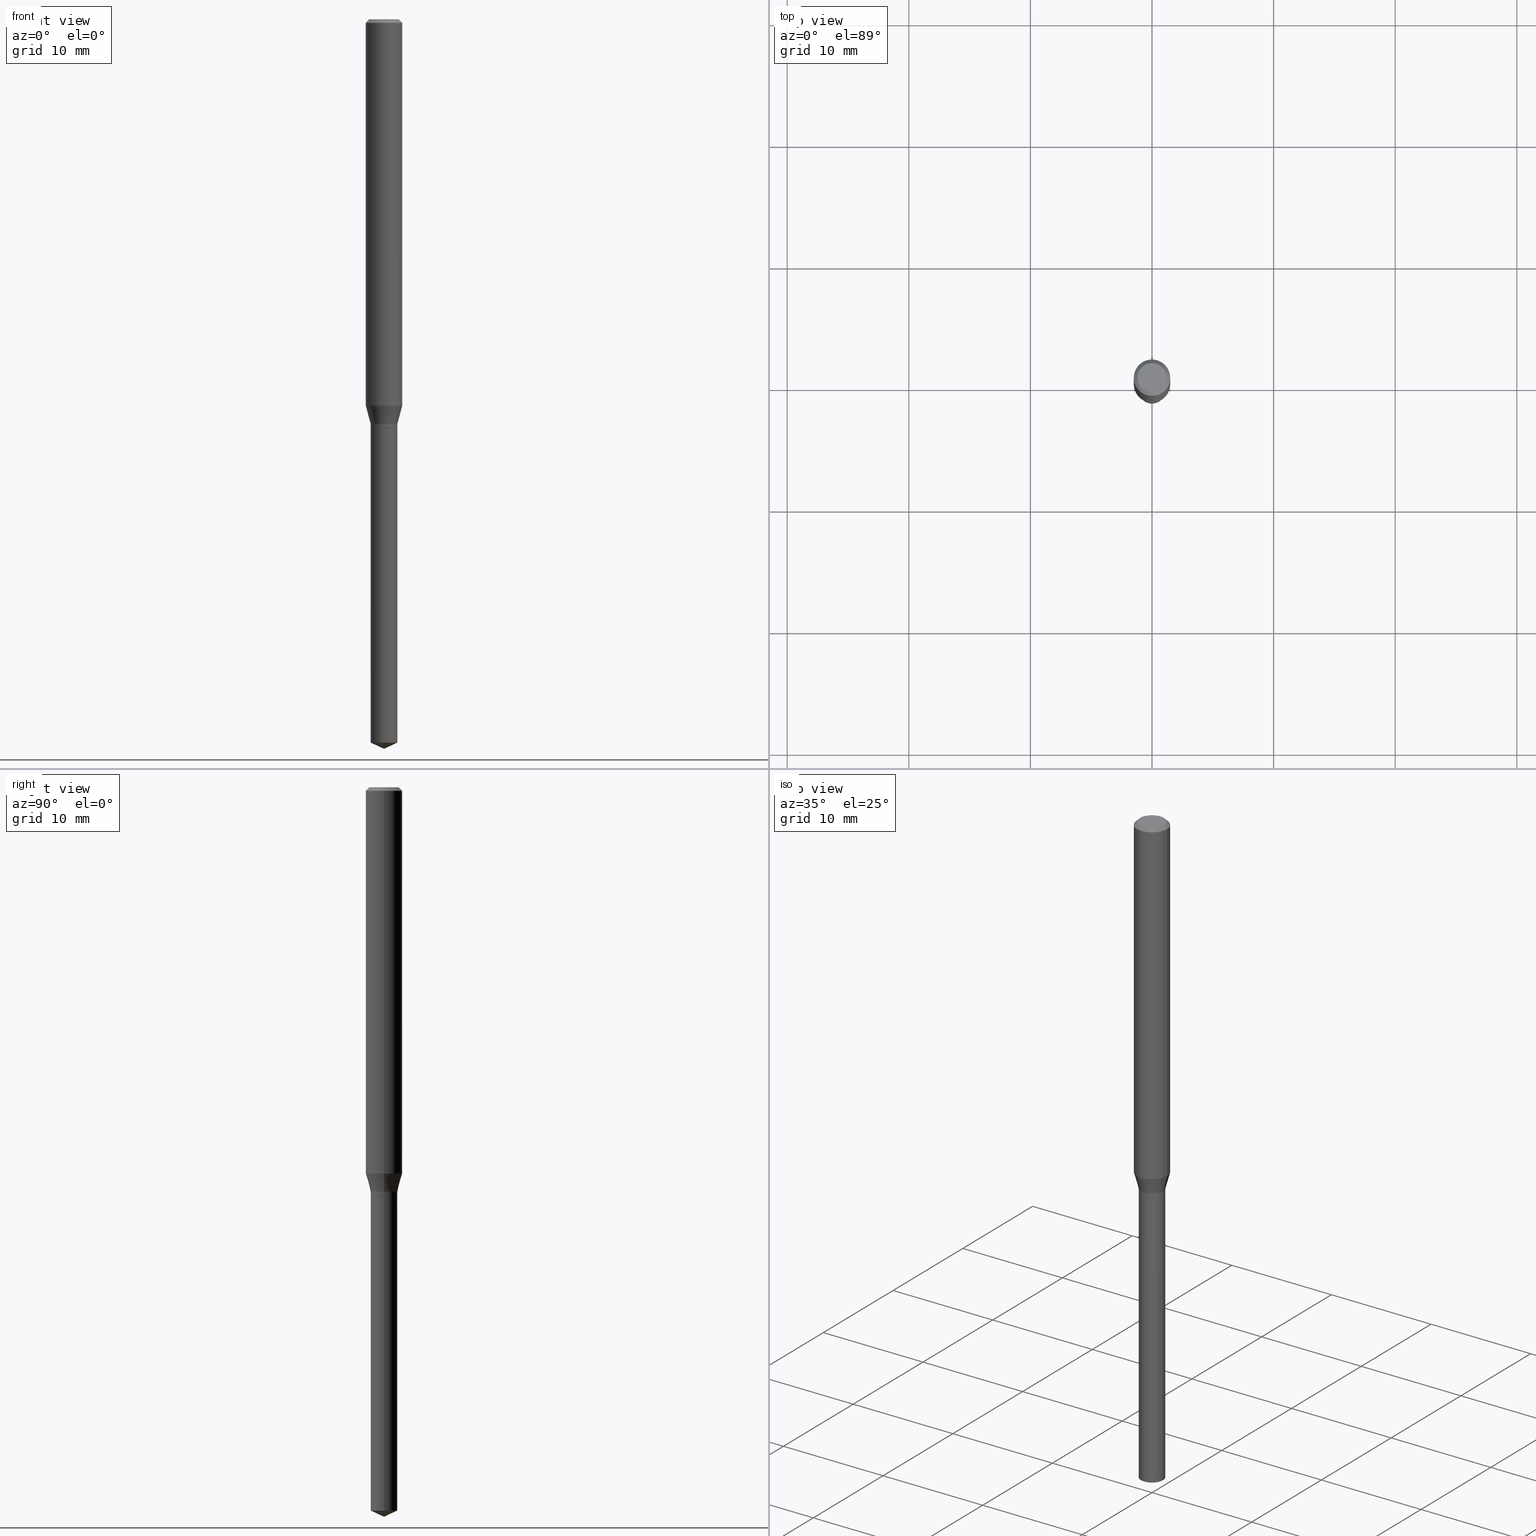
[diagram: canonical four-view strip — front | top / right | iso, engineering-drawing reading convention]
A machine part, canonical four-view strip (front | top / right | iso — engineering-drawing reading convention). The complete STEP part file that produces these views, byte-faithful:
ISO-10303-21;
HEADER;
FILE_DESCRIPTION (( 'STEP AP203' ),
    '1' );
FILE_NAME ('07625.STEP',
    '2024-04-23T23:58:14',
    ( '' ),
    ( '' ),
    'SwSTEP 2.0',
    'SolidWorks 2023',
    '' );
FILE_SCHEMA (( 'CONFIG_CONTROL_DESIGN' ));
ENDSEC;

DATA;
#1 = EDGE_LOOP ( 'NONE', ( #71, #170, #32, #112 ) ) ;
#2 = DIRECTION ( 'NONE',  ( -2.445468806185136597E-29, 3.491481338843145583E-15, 1.000000000000000000 ) ) ;
#3 = ORIENTED_EDGE ( 'NONE', *, *, #154, .T. ) ;
#4 = CARTESIAN_POINT ( 'NONE',  ( 0.05905000000000015098, -4.780257628167824527E-15, -1.251020199780789266 ) ) ;
#5 = VERTEX_POINT ( 'NONE', #366 ) ;
#6 = DIRECTION ( 'NONE',  ( 1.000000000000000000, -6.982962677686266711E-15, 4.876176775795936353E-29 ) ) ;
#7 = DIRECTION ( 'NONE',  ( 1.000000000000000000, -6.982962677686262766E-15, 0.000000000000000000 ) ) ;
#8 = PERSON_AND_ORGANIZATION ( #11, #157 ) ;
#9 = DESIGN_CONTEXT ( 'detailed design', #333, 'design' ) ;
#10 = DATE_AND_TIME ( #161, #246 ) ;
#11 = PERSON ( 'UNSPECIFIED', 'UNSPECIFIED', 'UNSPECIFIED', ('UNSPECIFIED'), ('UNSPECIFIED'), ('UNSPECIFIED') ) ;
#12 = VECTOR ( 'NONE', #61, 39.37007874015748854 ) ;
#13 = AXIS2_PLACEMENT_3D ( 'NONE', #360, #469, #247 ) ;
#14 = EDGE_CURVE ( 'NONE', #57, #5, #363, .T. ) ;
#15 = DIRECTION ( 'NONE',  ( -2.445468806185136597E-29, 3.491481338843145583E-15, 1.000000000000000000 ) ) ;
#16 = EDGE_LOOP ( 'NONE', ( #34, #452, #153, #379 ) ) ;
#17 = PERSON_AND_ORGANIZATION_ROLE ( 'design_owner' ) ;
#18 = VERTEX_POINT ( 'NONE', #330 ) ;
#19 = AXIS2_PLACEMENT_3D ( 'NONE', #83, #239, #394 ) ;
#20 = AXIS2_PLACEMENT_3D ( 'NONE', #461, #122, #487 ) ;
#21 = EDGE_LOOP ( 'NONE', ( #348, #121, #206, #167 ) ) ;
#22 = PERSON_AND_ORGANIZATION ( #11, #157 ) ;
#23 = CARTESIAN_POINT ( 'NONE',  ( -0.05905000000000015098, -3.948338196584109325E-15, -1.251020199780789266 ) ) ;
#24 = DIRECTION ( 'NONE',  ( 1.000000000000000000, -6.982962677686267499E-15, 4.876176775795936353E-29 ) ) ;
#25 = EDGE_CURVE ( 'NONE', #5, #57, #356, .T. ) ;
#26 = AXIS2_PLACEMENT_3D ( 'NONE', #132, #332, #244 ) ;
#27 = CARTESIAN_POINT ( 'NONE',  ( 0.04280000000000000471, -4.917402317626683735E-15, -1.322799999999999532 ) ) ;
#28 = CONICAL_SURFACE ( 'NONE', #416, 0.05904999999999999832, 0.7853981633974450594 ) ;
#29 = CC_DESIGN_APPROVAL ( #361, ( #68 ) ) ;
#30 = ORIENTED_EDGE ( 'NONE', *, *, #488, .T. ) ;
#31 = LINE ( 'NONE', #177, #164 ) ;
#32 = ORIENTED_EDGE ( 'NONE', *, *, #402, .T. ) ;
#33 = CARTESIAN_POINT ( 'NONE',  ( 3.203075042341291328E-29, -4.573142257616751398E-15, -1.309799999999999853 ) ) ;
#34 = ORIENTED_EDGE ( 'NONE', *, *, #169, .F. ) ;
#35 = CYLINDRICAL_SURFACE ( 'NONE', #231, 0.05905000000000007465 ) ;
#36 = AXIS2_PLACEMENT_3D ( 'NONE', #441, #303, #108 ) ;
#37 = EDGE_LOOP ( 'NONE', ( #73, #301, #447 ) ) ;
#38 = LOCAL_TIME ( 19, 58, 14.00000000000000000, #124 ) ;
#39 = CYLINDRICAL_SURFACE ( 'NONE', #262, 0.04329999999999999127 ) ;
#40 = ORIENTED_EDGE ( 'NONE', *, *, #25, .F. ) ;
#41 = CARTESIAN_POINT ( 'NONE',  ( 0.04329999999999999127, -4.920893798965527531E-15, -1.322799999999999976 ) ) ;
#42 = ADVANCED_FACE ( 'NONE', ( #437 ), #399, .T. ) ;
#43 = CARTESIAN_POINT ( 'NONE',  ( -0.04280000000000000471, -4.314419224116387972E-15, -1.322799999999999532 ) ) ;
#44 = PLANE ( 'NONE',  #20 ) ;
#45 = ORIENTED_EDGE ( 'NONE', *, *, #488, .F. ) ;
#46 = AXIS2_PLACEMENT_3D ( 'NONE', #128, #47, #96 ) ;
#47 = DIRECTION ( 'NONE',  ( -2.445468806185136597E-29, 3.491481338843145583E-15, 1.000000000000000000 ) ) ;
#48 = PERSON_AND_ORGANIZATION ( #11, #157 ) ;
#49 = EDGE_CURVE ( 'NONE', #276, #421, #392, .T. ) ;
#50 = FACE_OUTER_BOUND ( 'NONE', #151, .T. ) ;
#51 = AXIS2_PLACEMENT_3D ( 'NONE', #251, #130, #407 ) ;
#52 = VECTOR ( 'NONE', #100, 39.37007874015748143 ) ;
#53 = APPROVAL_ROLE ( '' ) ;
#54 = ORIENTED_EDGE ( 'NONE', *, *, #249, .F. ) ;
#55 = CC_DESIGN_PERSON_AND_ORGANIZATION_ASSIGNMENT ( #168, #323, ( #68 ) ) ;
#56 = MANIFOLD_SOLID_BREP ( 'Body-Move/Copy2[2]', #334 ) ;
#57 = VERTEX_POINT ( 'NONE', #355 ) ;
#58 = EDGE_LOOP ( 'NONE', ( #423, #118, #97, #315 ) ) ;
#59 = DATE_AND_TIME ( #255, #78 ) ;
#60 = EDGE_CURVE ( 'NONE', #401, #455, #404, .T. ) ;
#61 = DIRECTION ( 'NONE',  ( 0.9063077870366528233, -4.853149677051422177E-15, 0.4226182617406928910 ) ) ;
#62 = DIRECTION ( 'NONE',  ( 1.000000000000000000, -6.982962677686276966E-15, 0.000000000000000000 ) ) ;
#63 = LINE ( 'NONE', #70, #12 ) ;
#64 = ADVANCED_FACE ( 'NONE', ( #278 ), #158, .T. ) ;
#65 = ORIENTED_EDGE ( 'NONE', *, *, #295, .T. ) ;
#66 = DIRECTION ( 'NONE',  ( -2.445468806185136597E-29, 3.491481338843145583E-15, 1.000000000000000000 ) ) ;
#67 = AXIS2_PLACEMENT_3D ( 'NONE', #234, #272, #422 ) ;
#68 = PRODUCT_DEFINITION ( 'UNKNOWN', '', #308, #9 ) ;
#69 = ORIENTED_EDGE ( 'NONE', *, *, #216, .F. ) ;
#70 = CARTESIAN_POINT ( 'NONE',  ( 5.776686413970529753E-29, -8.247577218615279626E-15, -2.362200000000000077 ) ) ;
#71 = ORIENTED_EDGE ( 'NONE', *, *, #350, .F. ) ;
#72 = CARTESIAN_POINT ( 'NONE',  ( 8.265746106709734507E-48, -1.180129479067563789E-33, -3.380025165646692144E-19 ) ) ;
#73 = ORIENTED_EDGE ( 'NONE', *, *, #142, .F. ) ;
#74 = DIRECTION ( 'NONE',  ( -2.445468806185136597E-29, 3.491481338843145583E-15, 1.000000000000000000 ) ) ;
#75 = ADVANCED_FACE ( 'NONE', ( #428 ), #241, .T. ) ;
#76 = CONICAL_SURFACE ( 'NONE', #377, 0.04280000000000000471, 0.7853981633981141908 ) ;
#77 = ORIENTED_EDGE ( 'NONE', *, *, #413, .T. ) ;
#78 = LOCAL_TIME ( 19, 58, 14.00000000000000000, #210 ) ;
#79 = DIRECTION ( 'NONE',  ( -2.445468806185136597E-29, 3.491481338843145583E-15, 1.000000000000000000 ) ) ;
#80 = CC_DESIGN_PERSON_AND_ORGANIZATION_ASSIGNMENT ( #133, #213, ( #308 ) ) ;
#81 = DIRECTION ( 'NONE',  ( 1.000000000000000000, -6.982962677686276966E-15, 0.000000000000000000 ) ) ;
#82 = LINE ( 'NONE', #111, #473 ) ;
#83 = CARTESIAN_POINT ( 'NONE',  ( 2.888098660104664642E-31, -4.123439461173780879E-17, -0.01181000000000007565 ) ) ;
#84 = EDGE_CURVE ( 'NONE', #103, #368, #369, .T. ) ;
#85 = DIRECTION ( 'NONE',  ( 1.000000000000000000, -6.982962677686266711E-15, 4.876185090822587894E-29 ) ) ;
#86 = CIRCLE ( 'NONE', #431, 0.04330000000000001903 ) ;
#87 = EDGE_CURVE ( 'NONE', #160, #401, #430, .T. ) ;
#88 = SECURITY_CLASSIFICATION ( '', '', #484 ) ;
#89 = CARTESIAN_POINT ( 'NONE',  ( 0.000000000000000000, 0.000000000000000000, 0.000000000000000000 ) ) ;
#90 = CARTESIAN_POINT ( 'NONE',  ( -0.05905000000000007465, 4.195754854663396902E-16, -2.904631170795525395E-30 ) ) ;
#91 = APPLICATION_PROTOCOL_DEFINITION ( 'international standard', 'config_control_design', 1994, #333 ) ;
#92 = DIRECTION ( 'NONE',  ( 1.000000000000000000, -6.982962677686266711E-15, 4.876176775795936353E-29 ) ) ;
#93 = CIRCLE ( 'NONE', #46, 0.04329999999999999127 ) ;
#94 = DIRECTION ( 'NONE',  ( 1.000000000000000000, -6.982962677686276966E-15, 0.000000000000000000 ) ) ;
#95 = CARTESIAN_POINT ( 'NONE',  ( -0.04329999999999999127, -4.310866510437588651E-15, -1.322799999999999976 ) ) ;
#96 = DIRECTION ( 'NONE',  ( 1.000000000000000000, -6.982962677686269866E-15, 0.000000000000000000 ) ) ;
#97 = ORIENTED_EDGE ( 'NONE', *, *, #260, .F. ) ;
#98 = CARTESIAN_POINT ( 'NONE',  ( 3.203075042341291328E-29, -4.573142257616751398E-15, -1.309799999999999853 ) ) ;
#99 = AXIS2_PLACEMENT_3D ( 'NONE', #459, #148, #277 ) ;
#100 = DIRECTION ( 'NONE',  ( -0.2588190451025199623, 5.211531920934541575E-15, 0.9659258262890685343 ) ) ;
#101 = DATE_AND_TIME ( #219, #438 ) ;
#102 = DIRECTION ( 'NONE',  ( -2.438088387897960049E-29, 3.491481338843145188E-15, 1.000000000000000000 ) ) ;
#103 = VERTEX_POINT ( 'NONE', #23 ) ;
#104 = PERSON_AND_ORGANIZATION ( #11, #157 ) ;
#105 = CYLINDRICAL_SURFACE ( 'NONE', #451, 0.04330000000000001903 ) ;
#106 = ADVANCED_FACE ( 'NONE', ( #297 ), #371, .F. ) ;
#107 = EDGE_LOOP ( 'NONE', ( #204, #233, #144, #189 ) ) ;
#108 = DIRECTION ( 'NONE',  ( 1.000000000000000000, -6.982962677686262766E-15, 0.000000000000000000 ) ) ;
#109 = AXIS2_PLACEMENT_3D ( 'NONE', #320, #2, #490 ) ;
#110 = VERTEX_POINT ( 'NONE', #299 ) ;
#111 = CARTESIAN_POINT ( 'NONE',  ( 0.05904999999999999832, -4.463468013801466955E-16, -0.01181000000000007565 ) ) ;
#112 = ORIENTED_EDGE ( 'NONE', *, *, #14, .T. ) ;
#113 = FACE_OUTER_BOUND ( 'NONE', #269, .T. ) ;
#114 = EDGE_LOOP ( 'NONE', ( #288, #419, #414, #267 ) ) ;
#115 = CC_DESIGN_DATE_AND_TIME_ASSIGNMENT ( #141, #374, ( #88 ) ) ;
#116 = DIRECTION ( 'NONE',  ( -2.445468806185136597E-29, 3.491481338843145583E-15, 1.000000000000000000 ) ) ;
#117 = VECTOR ( 'NONE', #391, 39.37007874015748143 ) ;
#118 = ORIENTED_EDGE ( 'NONE', *, *, #49, .T. ) ;
#119 = DIRECTION ( 'NONE',  ( 2.445468806185136597E-29, -3.491481338843145583E-15, -1.000000000000000000 ) ) ;
#120 = ADVANCED_FACE ( 'NONE', ( #380 ), #292, .T. ) ;
#121 = ORIENTED_EDGE ( 'NONE', *, *, #350, .T. ) ;
#122 = DIRECTION ( 'NONE',  ( 2.438088387897960049E-29, -3.491481338843145188E-15, -1.000000000000000000 ) ) ;
#123 = VERTEX_POINT ( 'NONE', #480 ) ;
#124 = COORDINATED_UNIVERSAL_TIME_OFFSET ( 5, 0, .BEHIND. ) ;
#125 = CIRCLE ( 'NONE', #131, 0.04724000000000000421 ) ;
#126 = COORDINATED_UNIVERSAL_TIME_OFFSET ( 5, 0, .BEHIND. ) ;
#127 = CARTESIAN_POINT ( 'NONE',  ( 3.233643402418606881E-29, -4.616785774352292931E-15, -1.322300000000000253 ) ) ;
#128 = CARTESIAN_POINT ( 'NONE',  ( 5.727309655940458271E-29, -8.177080294345160929E-15, -2.342008878401888872 ) ) ;
#129 = EDGE_CURVE ( 'NONE', #421, #310, #186, .T. ) ;
#130 = DIRECTION ( 'NONE',  ( -2.445468806185136597E-29, 3.491481338843145583E-15, 1.000000000000000000 ) ) ;
#131 = AXIS2_PLACEMENT_3D ( 'NONE', #237, #74, #354 ) ;
#132 = CARTESIAN_POINT ( 'NONE',  ( 2.888098660104664642E-31, -4.123439461173780879E-17, -0.01181000000000007565 ) ) ;
#133 = PERSON_AND_ORGANIZATION ( #11, #157 ) ;
#134 = DIRECTION ( 'NONE',  ( -2.445468806185136597E-29, 3.491481338843145583E-15, 1.000000000000000000 ) ) ;
#135 = EDGE_CURVE ( 'NONE', #225, #368, #139, .T. ) ;
#136 = DIRECTION ( 'NONE',  ( -2.445468806185136597E-29, 3.491481338843145583E-15, 1.000000000000000000 ) ) ;
#137 = EDGE_CURVE ( 'NONE', #160, #483, #443, .T. ) ;
#138 = CONICAL_SURFACE ( 'NONE', #171, 0.04330000000000001903, 0.2617993877991485197 ) ;
#139 = LINE ( 'NONE', #449, #325 ) ;
#140 = CC_DESIGN_APPROVAL ( #454, ( #88 ) ) ;
#141 = DATE_AND_TIME ( #205, #296 ) ;
#142 = EDGE_CURVE ( 'NONE', #383, #110, #63, .T. ) ;
#143 = CARTESIAN_POINT ( 'NONE',  ( 3.203075042341291328E-29, -4.573142257616751398E-15, -1.309799999999999853 ) ) ;
#144 = ORIENTED_EDGE ( 'NONE', *, *, #413, .F. ) ;
#145 = COORDINATED_UNIVERSAL_TIME_OFFSET ( 5, 0, .BEHIND. ) ;
#146 = DIRECTION ( 'NONE',  ( 1.000000000000000000, -6.982962677686265133E-15, 0.000000000000000000 ) ) ;
#147 = EDGE_LOOP ( 'NONE', ( #77, #222, #389, #202 ) ) ;
#148 = DIRECTION ( 'NONE',  ( -2.445468806185136597E-29, 3.491481338843145583E-15, 1.000000000000000000 ) ) ;
#149 = EDGE_LOOP ( 'NONE', ( #183, #460, #40, #346 ) ) ;
#150 = DIRECTION ( 'NONE',  ( -2.445468806185136877E-29, 3.491481338843145188E-15, 1.000000000000000000 ) ) ;
#151 = EDGE_LOOP ( 'NONE', ( #475, #3, #191, #489 ) ) ;
#152 = DIRECTION ( 'NONE',  ( -2.445468806185136597E-29, 3.491481338843145583E-15, 1.000000000000000000 ) ) ;
#153 = ORIENTED_EDGE ( 'NONE', *, *, #135, .T. ) ;
#154 = EDGE_CURVE ( 'NONE', #401, #160, #254, .T. ) ;
#155 = FACE_OUTER_BOUND ( 'NONE', #114, .T. ) ;
#156 = VECTOR ( 'NONE', #248, 39.37007874015748143 ) ;
#157 = ORGANIZATION ( 'UNSPECIFIED', 'UNSPECIFIED', '' ) ;
#158 = CYLINDRICAL_SURFACE ( 'NONE', #229, 0.05905000000000007465 ) ;
#159 = CARTESIAN_POINT ( 'NONE',  ( -0.04330000000000000515, -7.869415289761038301E-15, -2.342008878401888872 ) ) ;
#160 = VERTEX_POINT ( 'NONE', #27 ) ;
#161 = CALENDAR_DATE ( 2024, 23, 4 ) ;
#162 = APPROVAL_DATE_TIME ( #10, #361 ) ;
#163 = VECTOR ( 'NONE', #418, 39.37007874015748854 ) ;
#164 = VECTOR ( 'NONE', #182, 39.37007874015748143 ) ;
#165 = PRODUCT_RELATED_PRODUCT_CATEGORY ( 'detail', '', ( #238 ) ) ;
#166 = DIRECTION ( 'NONE',  ( -2.445468806185136597E-29, 3.491481338843145583E-15, 1.000000000000000000 ) ) ;
#167 = ORIENTED_EDGE ( 'NONE', *, *, #402, .F. ) ;
#168 = PERSON_AND_ORGANIZATION ( #11, #157 ) ;
#169 = EDGE_CURVE ( 'NONE', #18, #103, #343, .T. ) ;
#170 = ORIENTED_EDGE ( 'NONE', *, *, #321, .F. ) ;
#171 = AXIS2_PLACEMENT_3D ( 'NONE', #143, #136, #446 ) ;
#172 = DATE_TIME_ROLE ( 'creation_date' ) ;
#173 = ADVANCED_FACE ( 'NONE', ( #478 ), #138, .T. ) ;
#174 = DIRECTION ( 'NONE',  ( -0.9063077870366528233, 7.915267918739013053E-15, 0.4226182617406928910 ) ) ;
#175 = LINE ( 'NONE', #338, #326 ) ;
#176 = PERSON_AND_ORGANIZATION_ROLE ( 'design_supplier' ) ;
#177 = CARTESIAN_POINT ( 'NONE',  ( 0.04330000000000001903, -3.023622839438155115E-16, 2.111384543919641328E-30 ) ) ;
#178 = ADVANCED_FACE ( 'NONE', ( #224 ), #105, .T. ) ;
#179 = CIRCLE ( 'NONE', #36, 0.05905000000000015098 ) ;
#180 = DIRECTION ( 'NONE',  ( 1.000000000000000000, -6.982962677686276966E-15, 0.000000000000000000 ) ) ;
#181 = ORIENTED_EDGE ( 'NONE', *, *, #192, .T. ) ;
#182 = DIRECTION ( 'NONE',  ( -2.445468806185136877E-29, 3.491481338843145188E-15, 1.000000000000000000 ) ) ;
#183 = ORIENTED_EDGE ( 'NONE', *, *, #203, .T. ) ;
#184 = DIRECTION ( 'NONE',  ( 1.000000000000000000, -6.982962677686269866E-15, 0.000000000000000000 ) ) ;
#185 = ORIENTED_EDGE ( 'NONE', *, *, #129, .F. ) ;
#186 = CIRCLE ( 'NONE', #253, 0.04329999999999999127 ) ;
#187 = FACE_OUTER_BOUND ( 'NONE', #16, .T. ) ;
#188 = CONICAL_SURFACE ( 'NONE', #424, 84.42940631927551465, 1.134464013796321336 ) ;
#189 = ORIENTED_EDGE ( 'NONE', *, *, #137, .F. ) ;
#190 = LINE ( 'NONE', #309, #117 ) ;
#191 = ORIENTED_EDGE ( 'NONE', *, *, #137, .T. ) ;
#192 = EDGE_CURVE ( 'NONE', #483, #225, #31, .T. ) ;
#193 = DIRECTION ( 'NONE',  ( 1.000000000000000000, -6.982962677686265133E-15, 0.000000000000000000 ) ) ;
#194 = DIRECTION ( 'NONE',  ( -0.7071067811870183073, 7.493145998872054944E-15, 0.7071067811860766161 ) ) ;
#195 = CARTESIAN_POINT ( 'NONE',  ( -0.04280000000000000471, -4.311769996942278349E-15, -1.322799999999999532 ) ) ;
#196 = CARTESIAN_POINT ( 'NONE',  ( 3.059330874471417775E-29, -4.367913682050449607E-15, -1.251020199780789266 ) ) ;
#197 =( NAMED_UNIT ( * ) SI_UNIT ( $, .STERADIAN. ) SOLID_ANGLE_UNIT ( ) );
#198 = CARTESIAN_POINT ( 'NONE',  ( 0.04724000000000000421, -3.852183633974369345E-16, -3.380025165621689721E-19 ) ) ;
#199 = EDGE_CURVE ( 'NONE', #455, #483, #410, .T. ) ;
#200 = AXIS2_PLACEMENT_3D ( 'NONE', #351, #116, #240 ) ;
#201 = CARTESIAN_POINT ( 'NONE',  ( 3.203075042341291328E-29, -4.573142257616751398E-15, -1.309799999999999853 ) ) ;
#202 = ORIENTED_EDGE ( 'NONE', *, *, #192, .F. ) ;
#203 = EDGE_CURVE ( 'NONE', #368, #103, #179, .T. ) ;
#204 = ORIENTED_EDGE ( 'NONE', *, *, #87, .T. ) ;
#205 = CALENDAR_DATE ( 2024, 23, 4 ) ;
#206 = ORIENTED_EDGE ( 'NONE', *, *, #25, .T. ) ;
#207 = AXIS2_PLACEMENT_3D ( 'NONE', #322, #434, #62 ) ;
#208 = CONICAL_SURFACE ( 'NONE', #99, 84.42940631927551465, 1.134464013796321336 ) ;
#209 = APPROVAL_PERSON_ORGANIZATION ( #442, #316, #448 ) ;
#210 = COORDINATED_UNIVERSAL_TIME_OFFSET ( 5, 0, .BEHIND. ) ;
#211 = DIRECTION ( 'NONE',  ( 1.000000000000000000, -6.982962677686265133E-15, 0.000000000000000000 ) ) ;
#212 = ADVANCED_BREP_SHAPE_REPRESENTATION ( '07625', ( #390, #56, #263 ), #476 ) ;
#213 = PERSON_AND_ORGANIZATION_ROLE ( 'creator' ) ;
#214 = DIRECTION ( 'NONE',  ( 0.2588190451025199623, 1.565188264969633209E-15, 0.9659258262890685343 ) ) ;
#215 = CARTESIAN_POINT ( 'NONE',  ( 3.234866136821697440E-29, -4.618531515021711280E-15, -1.322799999999999532 ) ) ;
#216 = EDGE_CURVE ( 'NONE', #383, #276, #264, .T. ) ;
#217 = ORIENTED_EDGE ( 'NONE', *, *, #87, .F. ) ;
#218 = VECTOR ( 'NONE', #456, 39.37007874015748143 ) ;
#219 = CALENDAR_DATE ( 2024, 23, 4 ) ;
#220 = APPROVAL_PERSON_ORGANIZATION ( #445, #454, #372 ) ;
#221 = CARTESIAN_POINT ( 'NONE',  ( 3.234866136821698001E-29, -4.618531515021712068E-15, -1.322799999999999976 ) ) ;
#222 = ORIENTED_EDGE ( 'NONE', *, *, #249, .T. ) ;
#223 = ADVANCED_FACE ( 'NONE', ( #337 ), #188, .T. ) ;
#224 = FACE_OUTER_BOUND ( 'NONE', #147, .T. ) ;
#225 = VERTEX_POINT ( 'NONE', #440 ) ;
#226 = CC_DESIGN_DATE_AND_TIME_ASSIGNMENT ( #298, #172, ( #68 ) ) ;
#227 = CARTESIAN_POINT ( 'NONE',  ( 0.000000000000000000, 0.000000000000000000, 0.000000000000000000 ) ) ;
#228 = ORIENTED_EDGE ( 'NONE', *, *, #135, .F. ) ;
#229 = AXIS2_PLACEMENT_3D ( 'NONE', #319, #463, #92 ) ;
#230 = CARTESIAN_POINT ( 'NONE',  ( 5.776686413970529753E-29, -8.247577218615279626E-15, -2.362200000000000077 ) ) ;
#231 = AXIS2_PLACEMENT_3D ( 'NONE', #227, #79, #6 ) ;
#232 = APPROVAL_PERSON_ORGANIZATION ( #48, #361, #53 ) ;
#233 = ORIENTED_EDGE ( 'NONE', *, *, #60, .T. ) ;
#234 = CARTESIAN_POINT ( 'NONE',  ( 3.234866136821698001E-29, -4.618531515021712068E-15, -1.322799999999999976 ) ) ;
#235 = EDGE_CURVE ( 'NONE', #18, #225, #481, .T. ) ;
#236 = EDGE_LOOP ( 'NONE', ( #54, #271, #181, #417 ) ) ;
#237 = CARTESIAN_POINT ( 'NONE',  ( 8.265746106709734507E-48, -1.180129479067563789E-33, -3.380025165646692144E-19 ) ) ;
#238 = PRODUCT ( '07625', '07625', '', ( #468 ) ) ;
#239 = DIRECTION ( 'NONE',  ( 2.445468806185136597E-29, -3.491481338843145583E-15, -1.000000000000000000 ) ) ;
#240 = DIRECTION ( 'NONE',  ( 1.000000000000000000, -6.982962677686267499E-15, 4.876176775795936353E-29 ) ) ;
#241 = CONICAL_SURFACE ( 'NONE', #19, 0.05904999999999999832, 0.7853981633974450594 ) ;
#242 = CONICAL_SURFACE ( 'NONE', #357, 0.04330000000000001903, 0.2617993877991485197 ) ;
#243 =( NAMED_UNIT ( * ) PLANE_ANGLE_UNIT ( ) SI_UNIT ( $, .RADIAN. ) );
#244 = DIRECTION ( 'NONE',  ( 1.000000000000000000, -6.982962677686266711E-15, 0.000000000000000000 ) ) ;
#245 = CIRCLE ( 'NONE', #109, 0.04329999999999999127 ) ;
#246 = LOCAL_TIME ( 19, 58, 14.00000000000000000, #126 ) ;
#247 = DIRECTION ( 'NONE',  ( 1.000000000000000000, -6.982962677686269866E-15, 0.000000000000000000 ) ) ;
#248 = DIRECTION ( 'NONE',  ( -2.445468806185136877E-29, 3.491481338843145188E-15, 1.000000000000000000 ) ) ;
#249 = EDGE_CURVE ( 'NONE', #455, #18, #175, .T. ) ;
#250 = APPROVAL_STATUS ( 'not_yet_approved' ) ;
#251 = CARTESIAN_POINT ( 'NONE',  ( 2.888098660104664642E-31, -4.123439461173780879E-17, -0.01181000000000007565 ) ) ;
#252 = CARTESIAN_POINT ( 'NONE',  ( 9.130719432610104789E-29, 3.824665975677089392E-15, -1.322799999999999976 ) ) ;
#253 = AXIS2_PLACEMENT_3D ( 'NONE', #221, #66, #415 ) ;
#254 = CIRCLE ( 'NONE', #335, 0.04280000000000000471 ) ;
#255 = CALENDAR_DATE ( 2024, 23, 4 ) ;
#256 = CARTESIAN_POINT ( 'NONE',  ( 0.000000000000000000, 0.000000000000000000, 0.000000000000000000 ) ) ;
#257 = DIRECTION ( 'NONE',  ( -2.445468806185136597E-29, 3.491481338843145583E-15, 1.000000000000000000 ) ) ;
#258 = ORIENTED_EDGE ( 'NONE', *, *, #154, .F. ) ;
#259 = DIRECTION ( 'NONE',  ( -2.445468806185136597E-29, 3.491481338843145583E-15, 1.000000000000000000 ) ) ;
#260 = EDGE_CURVE ( 'NONE', #310, #421, #245, .T. ) ;
#261 = ORIENTED_EDGE ( 'NONE', *, *, #458, .T. ) ;
#262 = AXIS2_PLACEMENT_3D ( 'NONE', #453, #318, #184 ) ;
#263 = AXIS2_PLACEMENT_3D ( 'NONE', #89, #466, #282 ) ;
#264 = LINE ( 'NONE', #382, #273 ) ;
#265 = PRODUCT_DEFINITION_SHAPE ( 'NONE', 'NONE',  #68 ) ;
#266 = EDGE_CURVE ( 'NONE', #368, #5, #190, .T. ) ;
#267 = ORIENTED_EDGE ( 'NONE', *, *, #14, .F. ) ;
#268 = FACE_OUTER_BOUND ( 'NONE', #1, .T. ) ;
#269 = EDGE_LOOP ( 'NONE', ( #486, #444 ) ) ;
#270 = FACE_OUTER_BOUND ( 'NONE', #236, .T. ) ;
#271 = ORIENTED_EDGE ( 'NONE', *, *, #199, .T. ) ;
#272 = DIRECTION ( 'NONE',  ( 2.438088387897960049E-29, -3.491481338843145188E-15, -1.000000000000000000 ) ) ;
#273 = VECTOR ( 'NONE', #174, 39.37007874015748854 ) ;
#274 = CARTESIAN_POINT ( 'NONE',  ( 3.234866136821697440E-29, -4.618531515021711280E-15, -1.322799999999999532 ) ) ;
#275 = DIRECTION ( 'NONE',  ( -1.000000000000000000, 6.982962677686266711E-15, 0.000000000000000000 ) ) ;
#276 = VERTEX_POINT ( 'NONE', #159 ) ;
#277 = DIRECTION ( 'NONE',  ( 1.000000000000000000, -6.982962677686267499E-15, 0.000000000000000000 ) ) ;
#278 = FACE_OUTER_BOUND ( 'NONE', #149, .T. ) ;
#279 = CALENDAR_DATE ( 2024, 23, 4 ) ;
#280 = AXIS2_PLACEMENT_3D ( 'NONE', #252, #102, #340 ) ;
#281 = DIRECTION ( 'NONE',  ( 1.000000000000000000, -6.982962677686265133E-15, 0.000000000000000000 ) ) ;
#282 = DIRECTION ( 'NONE',  ( 1.000000000000000000, 0.000000000000000000, 0.000000000000000000 ) ) ;
#283 = DIRECTION ( 'NONE',  ( 1.000000000000000000, -6.982962677686265133E-15, 0.000000000000000000 ) ) ;
#284 = ADVANCED_FACE ( 'NONE', ( #270 ), #427, .T. ) ;
#285 = DIRECTION ( 'NONE',  ( -2.445468806185136597E-29, 3.491481338843145583E-15, 1.000000000000000000 ) ) ;
#286 = AXIS2_PLACEMENT_3D ( 'NONE', #98, #409, #211 ) ;
#287 = APPLICATION_PROTOCOL_DEFINITION ( 'international standard', 'config_control_design', 1994, #293 ) ;
#288 = ORIENTED_EDGE ( 'NONE', *, *, #470, .F. ) ;
#289 = PERSON_AND_ORGANIZATION_ROLE ( 'classification_officer' ) ;
#290 = DIRECTION ( 'NONE',  ( 1.000000000000000000, -6.982962677686267499E-15, 0.000000000000000000 ) ) ;
#291 = DIMENSIONAL_EXPONENTS ( 1.000000000000000000, 0.000000000000000000, 0.000000000000000000, 0.000000000000000000, 0.000000000000000000, 0.000000000000000000, 0.000000000000000000 ) ;
#292 = CYLINDRICAL_SURFACE ( 'NONE', #467, 0.04329999999999999127 ) ;
#293 = APPLICATION_CONTEXT ( 'configuration controlled 3d designs of mechanical parts and assemblies' ) ;
#294 = VECTOR ( 'NONE', #358, 39.37007874015748143 ) ;
#295 = EDGE_CURVE ( 'NONE', #110, #310, #425, .T. ) ;
#296 = LOCAL_TIME ( 19, 58, 14.00000000000000000, #145 ) ;
#297 = FACE_OUTER_BOUND ( 'NONE', #312, .T. ) ;
#298 = DATE_AND_TIME ( #279, #38 ) ;
#299 = CARTESIAN_POINT ( 'NONE',  ( 0.04330000000000000515, -8.479442578288976391E-15, -2.342008878401888872 ) ) ;
#300 = ADVANCED_FACE ( 'NONE', ( #113 ), #311, .F. ) ;
#301 = ORIENTED_EDGE ( 'NONE', *, *, #216, .T. ) ;
#302 = COORDINATED_UNIVERSAL_TIME_OFFSET ( 5, 0, .BEHIND. ) ;
#303 = DIRECTION ( 'NONE',  ( -2.445468806185136597E-29, 3.491481338843145583E-15, 1.000000000000000000 ) ) ;
#304 = ADVANCED_FACE ( 'NONE', ( #155 ), #35, .T. ) ;
#305 = EDGE_LOOP ( 'NONE', ( #69, #367, #45 ) ) ;
#306 = AXIS2_PLACEMENT_3D ( 'NONE', #196, #359, #7 ) ;
#307 = AXIS2_PLACEMENT_3D ( 'NONE', #127, #166, #281 ) ;
#308 = PRODUCT_DEFINITION_FORMATION_WITH_SPECIFIED_SOURCE ( 'ANY', '', #238, .NOT_KNOWN. ) ;
#309 = CARTESIAN_POINT ( 'NONE',  ( 0.05905000000000007465, -4.123439461173745750E-16, 2.879382386107504074E-30 ) ) ;
#310 = VERTEX_POINT ( 'NONE', #41 ) ;
#311 = PLANE ( 'NONE',  #67 ) ;
#312 = EDGE_LOOP ( 'NONE', ( #217, #258 ) ) ;
#313 = ADVANCED_FACE ( 'NONE', ( #187 ), #242, .T. ) ;
#314 = FACE_OUTER_BOUND ( 'NONE', #37, .T. ) ;
#315 = ORIENTED_EDGE ( 'NONE', *, *, #295, .F. ) ;
#316 = APPROVAL ( #339, 'UNSPECIFIED' ) ;
#317 = AXIS2_PLACEMENT_3D ( 'NONE', #72, #429, #85 ) ;
#318 = DIRECTION ( 'NONE',  ( -2.445468806185136597E-29, 3.491481338843145583E-15, 1.000000000000000000 ) ) ;
#319 = CARTESIAN_POINT ( 'NONE',  ( 0.000000000000000000, 0.000000000000000000, 0.000000000000000000 ) ) ;
#320 = CARTESIAN_POINT ( 'NONE',  ( 3.234866136821698001E-29, -4.618531515021712068E-15, -1.322799999999999976 ) ) ;
#321 = EDGE_CURVE ( 'NONE', #123, #439, #125, .T. ) ;
#322 = CARTESIAN_POINT ( 'NONE',  ( 3.234866136821697440E-29, -4.618531515021711280E-15, -1.322799999999999532 ) ) ;
#323 = PERSON_AND_ORGANIZATION_ROLE ( 'creator' ) ;
#324 = CC_DESIGN_PERSON_AND_ORGANIZATION_ASSIGNMENT ( #8, #17, ( #238 ) ) ;
#325 = VECTOR ( 'NONE', #214, 39.37007874015748143 ) ;
#326 = VECTOR ( 'NONE', #150, 39.37007874015748143 ) ;
#327 = DIRECTION ( 'NONE',  ( -2.445468806185136877E-29, 3.491481338843145188E-15, 1.000000000000000000 ) ) ;
#328 = ADVANCED_FACE ( 'NONE', ( #393 ), #39, .T. ) ;
#329 = CARTESIAN_POINT ( 'NONE',  ( 0.04330000000000001903, -4.919148058296108394E-15, -1.322300000000000253 ) ) ;
#330 = CARTESIAN_POINT ( 'NONE',  ( -0.04330000000000001903, -4.287299011400398748E-15, -1.309799999999999853 ) ) ;
#331 =( LENGTH_UNIT ( ) NAMED_UNIT ( * ) SI_UNIT ( $, .METRE. ) );
#332 = DIRECTION ( 'NONE',  ( -2.445468806185136597E-29, 3.491481338843145583E-15, 1.000000000000000000 ) ) ;
#333 = APPLICATION_CONTEXT ( 'configuration controlled 3d designs of mechanical parts and assemblies' ) ;
#334 = CLOSED_SHELL ( 'NONE', ( #42, #75, #64, #173, #178, #284, #313, #304, #395, #378, #106, #405 ) ) ;
#335 = AXIS2_PLACEMENT_3D ( 'NONE', #215, #373, #180 ) ;
#336 = SHAPE_DEFINITION_REPRESENTATION ( #265, #212 ) ;
#337 = FACE_OUTER_BOUND ( 'NONE', #305, .T. ) ;
#338 = CARTESIAN_POINT ( 'NONE',  ( -0.04330000000000001903, 3.076650045841235157E-16, -2.129898894080375104E-30 ) ) ;
#339 = APPROVAL_STATUS ( 'not_yet_approved' ) ;
#340 = DIRECTION ( 'NONE',  ( 1.000000000000000000, -6.982962677686265922E-15, 4.876176775795935793E-29 ) ) ;
#341 = AXIS2_PLACEMENT_3D ( 'NONE', #345, #485, #146 ) ;
#342 = CC_DESIGN_SECURITY_CLASSIFICATION ( #88, ( #308 ) ) ;
#343 = LINE ( 'NONE', #482, #52 ) ;
#344 = EDGE_LOOP ( 'NONE', ( #261, #457, #471, #228 ) ) ;
#345 = CARTESIAN_POINT ( 'NONE',  ( 3.233643402418606881E-29, -4.616785774352292931E-15, -1.322300000000000253 ) ) ;
#346 = ORIENTED_EDGE ( 'NONE', *, *, #266, .F. ) ;
#347 = FACE_OUTER_BOUND ( 'NONE', #385, .T. ) ;
#348 = ORIENTED_EDGE ( 'NONE', *, *, #398, .F. ) ;
#349 = CARTESIAN_POINT ( 'NONE',  ( 2.888098660104664642E-31, -4.123439461173780879E-17, -0.01181000000000007565 ) ) ;
#350 = EDGE_CURVE ( 'NONE', #439, #5, #82, .T. ) ;
#351 = CARTESIAN_POINT ( 'NONE',  ( 0.000000000000000000, 0.000000000000000000, 0.000000000000000000 ) ) ;
#352 = ORIENTED_EDGE ( 'NONE', *, *, #398, .T. ) ;
#353 = UNCERTAINTY_MEASURE_WITH_UNIT (LENGTH_MEASURE( 1.000000000000000082E-05 ), #472, 'distance_accuracy_value', 'NONE');
#354 = DIRECTION ( 'NONE',  ( 1.000000000000000000, -6.982962677686266711E-15, 4.876185090822587894E-29 ) ) ;
#355 = CARTESIAN_POINT ( 'NONE',  ( -0.05904999999999999832, -1.784998552864752992E-15, -0.01181000000000007565 ) ) ;
#356 = CIRCLE ( 'NONE', #51, 0.05904999999999999832 ) ;
#357 = AXIS2_PLACEMENT_3D ( 'NONE', #33, #152, #193 ) ;
#358 = DIRECTION ( 'NONE',  ( -0.7071067811865452413, 2.468850131082233000E-15, -0.7071067811865497932 ) ) ;
#359 = DIRECTION ( 'NONE',  ( -2.445468806185136597E-29, 3.491481338843145583E-15, 1.000000000000000000 ) ) ;
#360 = CARTESIAN_POINT ( 'NONE',  ( 5.727309655940458271E-29, -8.177080294345160929E-15, -2.342008878401888872 ) ) ;
#361 = APPROVAL ( #400, 'UNSPECIFIED' ) ;
#362 = LINE ( 'NONE', #90, #370 ) ;
#363 = CIRCLE ( 'NONE', #26, 0.05904999999999999832 ) ;
#364 = CC_DESIGN_APPROVAL ( #316, ( #308 ) ) ;
#365 = DIRECTION ( 'NONE',  ( -2.445468806185136597E-29, 3.491481338843145583E-15, 1.000000000000000000 ) ) ;
#366 = CARTESIAN_POINT ( 'NONE',  ( 0.05904999999999999832, -4.535783407291118600E-16, -0.01181000000000007565 ) ) ;
#367 = ORIENTED_EDGE ( 'NONE', *, *, #142, .T. ) ;
#368 = VERTEX_POINT ( 'NONE', #4 ) ;
#369 = CIRCLE ( 'NONE', #306, 0.05905000000000015098 ) ;
#370 = VECTOR ( 'NONE', #327, 39.37007874015748143 ) ;
#371 = PLANE ( 'NONE',  #280 ) ;
#372 = APPROVAL_ROLE ( '' ) ;
#373 = DIRECTION ( 'NONE',  ( -2.445468806185136597E-29, 3.491481338843145583E-15, 1.000000000000000000 ) ) ;
#374 = DATE_TIME_ROLE ( 'classification_date' ) ;
#375 = CARTESIAN_POINT ( 'NONE',  ( 3.234866136821698001E-29, -4.618531515021712068E-15, -1.322799999999999976 ) ) ;
#376 = AXIS2_PLACEMENT_3D ( 'NONE', #274, #285, #81 ) ;
#377 = AXIS2_PLACEMENT_3D ( 'NONE', #436, #365, #94 ) ;
#378 = ADVANCED_FACE ( 'NONE', ( #347 ), #44, .F. ) ;
#379 = ORIENTED_EDGE ( 'NONE', *, *, #84, .F. ) ;
#380 = FACE_OUTER_BOUND ( 'NONE', #58, .T. ) ;
#381 = ORIENTED_EDGE ( 'NONE', *, *, #49, .F. ) ;
#382 = CARTESIAN_POINT ( 'NONE',  ( 5.776686413970529753E-29, -8.247577218615279626E-15, -2.362200000000000077 ) ) ;
#383 = VERTEX_POINT ( 'NONE', #230 ) ;
#384 = CARTESIAN_POINT ( 'NONE',  ( 0.04329999999999999127, -4.920893798965527531E-15, -1.322799999999999976 ) ) ;
#385 = EDGE_LOOP ( 'NONE', ( #465, #352 ) ) ;
#386 = CIRCLE ( 'NONE', #317, 0.04724000000000000421 ) ;
#387 = LINE ( 'NONE', #420, #294 ) ;
#388 = ADVANCED_FACE ( 'NONE', ( #314 ), #208, .T. ) ;
#389 = ORIENTED_EDGE ( 'NONE', *, *, #458, .F. ) ;
#390 = MANIFOLD_SOLID_BREP ( 'Body-Move/Copy2[1]', #450 ) ;
#391 = DIRECTION ( 'NONE',  ( -2.445468806185136877E-29, 3.491481338843145188E-15, 1.000000000000000000 ) ) ;
#392 = LINE ( 'NONE', #95, #156 ) ;
#393 = FACE_OUTER_BOUND ( 'NONE', #426, .T. ) ;
#394 = DIRECTION ( 'NONE',  ( -1.000000000000000000, 6.982962677686266711E-15, 0.000000000000000000 ) ) ;
#395 = ADVANCED_FACE ( 'NONE', ( #268 ), #28, .T. ) ;
#396 = CIRCLE ( 'NONE', #307, 0.04330000000000001903 ) ;
#397 = LENGTH_MEASURE_WITH_UNIT ( LENGTH_MEASURE( 0.02539999999999999897 ), #331 );
#398 = EDGE_CURVE ( 'NONE', #439, #123, #386, .T. ) ;
#399 = CONICAL_SURFACE ( 'NONE', #376, 0.04280000000000000471, 0.7853981633981141908 ) ;
#400 = APPROVAL_STATUS ( 'not_yet_approved' ) ;
#401 = VERTEX_POINT ( 'NONE', #195 ) ;
#402 = EDGE_CURVE ( 'NONE', #123, #57, #387, .T. ) ;
#403 = CIRCLE ( 'NONE', #13, 0.04329999999999999127 ) ;
#404 = LINE ( 'NONE', #43, #435 ) ;
#405 = ADVANCED_FACE ( 'NONE', ( #50 ), #76, .T. ) ;
#406 = APPROVAL_DATE_TIME ( #59, #454 ) ;
#407 = DIRECTION ( 'NONE',  ( 1.000000000000000000, -6.982962677686266711E-15, 0.000000000000000000 ) ) ;
#408 = EDGE_CURVE ( 'NONE', #110, #276, #93, .T. ) ;
#409 = DIRECTION ( 'NONE',  ( -2.445468806185136597E-29, 3.491481338843145583E-15, 1.000000000000000000 ) ) ;
#410 = CIRCLE ( 'NONE', #341, 0.04330000000000001903 ) ;
#411 = DIRECTION ( 'NONE',  ( 1.000000000000000000, -6.982962677686269866E-15, 0.000000000000000000 ) ) ;
#412 = CARTESIAN_POINT ( 'NONE',  ( 0.04280000000000000471, -4.917402317626683735E-15, -1.322799999999999532 ) ) ;
#413 = EDGE_CURVE ( 'NONE', #483, #455, #396, .T. ) ;
#414 = ORIENTED_EDGE ( 'NONE', *, *, #266, .T. ) ;
#415 = DIRECTION ( 'NONE',  ( 1.000000000000000000, -6.982962677686269866E-15, 0.000000000000000000 ) ) ;
#416 = AXIS2_PLACEMENT_3D ( 'NONE', #349, #119, #275 ) ;
#417 = ORIENTED_EDGE ( 'NONE', *, *, #235, .F. ) ;
#418 = DIRECTION ( 'NONE',  ( 0.7071067811870183073, -2.468850131087188625E-15, 0.7071067811860766161 ) ) ;
#419 = ORIENTED_EDGE ( 'NONE', *, *, #84, .T. ) ;
#420 = CARTESIAN_POINT ( 'NONE',  ( -0.05904999999999999832, 3.711095515056362547E-16, -0.01181000000000007565 ) ) ;
#421 = VERTEX_POINT ( 'NONE', #432 ) ;
#422 = DIRECTION ( 'NONE',  ( -1.000000000000000000, 6.982962677686265922E-15, -4.876176775795935793E-29 ) ) ;
#423 = ORIENTED_EDGE ( 'NONE', *, *, #408, .T. ) ;
#424 = AXIS2_PLACEMENT_3D ( 'NONE', #477, #134, #290 ) ;
#425 = LINE ( 'NONE', #384, #218 ) ;
#426 = EDGE_LOOP ( 'NONE', ( #381, #30, #65, #185 ) ) ;
#427 = CYLINDRICAL_SURFACE ( 'NONE', #200, 0.04330000000000001903 ) ;
#428 = FACE_OUTER_BOUND ( 'NONE', #21, .T. ) ;
#429 = DIRECTION ( 'NONE',  ( -2.445468806185136597E-29, 3.491481338843145583E-15, 1.000000000000000000 ) ) ;
#430 = CIRCLE ( 'NONE', #207, 0.04280000000000000471 ) ;
#431 = AXIS2_PLACEMENT_3D ( 'NONE', #201, #15, #283 ) ;
#432 = CARTESIAN_POINT ( 'NONE',  ( -0.04329999999999999127, -6.090140900099312687E-15, -1.322799999999999976 ) ) ;
#433 = CARTESIAN_POINT ( 'NONE',  ( -0.04330000000000001903, -4.287299011400398748E-15, -1.322300000000000253 ) ) ;
#434 = DIRECTION ( 'NONE',  ( -2.445468806185136597E-29, 3.491481338843145583E-15, 1.000000000000000000 ) ) ;
#435 = VECTOR ( 'NONE', #194, 39.37007874015748854 ) ;
#436 = CARTESIAN_POINT ( 'NONE',  ( 3.234866136821697440E-29, -4.618531515021711280E-15, -1.322799999999999532 ) ) ;
#437 = FACE_OUTER_BOUND ( 'NONE', #107, .T. ) ;
#438 = LOCAL_TIME ( 19, 58, 14.00000000000000000, #302 ) ;
#439 = VERTEX_POINT ( 'NONE', #198 ) ;
#440 = CARTESIAN_POINT ( 'NONE',  ( 0.04330000000000001903, -4.875504541560566860E-15, -1.309799999999999853 ) ) ;
#441 = CARTESIAN_POINT ( 'NONE',  ( 3.059330874471417775E-29, -4.367913682050449607E-15, -1.251020199780789266 ) ) ;
#442 = PERSON_AND_ORGANIZATION ( #11, #157 ) ;
#443 = LINE ( 'NONE', #412, #163 ) ;
#444 = ORIENTED_EDGE ( 'NONE', *, *, #129, .T. ) ;
#445 = PERSON_AND_ORGANIZATION ( #11, #157 ) ;
#446 = DIRECTION ( 'NONE',  ( 1.000000000000000000, -6.982962677686265133E-15, 0.000000000000000000 ) ) ;
#447 = ORIENTED_EDGE ( 'NONE', *, *, #408, .F. ) ;
#448 = APPROVAL_ROLE ( '' ) ;
#449 = CARTESIAN_POINT ( 'NONE',  ( 0.04330000000000001903, -4.875504541560566860E-15, -1.309799999999999853 ) ) ;
#450 = CLOSED_SHELL ( 'NONE', ( #120, #388, #223, #328, #300 ) ) ;
#451 = AXIS2_PLACEMENT_3D ( 'NONE', #256, #259, #24 ) ;
#452 = ORIENTED_EDGE ( 'NONE', *, *, #235, .T. ) ;
#453 = CARTESIAN_POINT ( 'NONE',  ( 3.234866136821698001E-29, -4.618531515021712068E-15, -1.322799999999999976 ) ) ;
#454 = APPROVAL ( #250, 'UNSPECIFIED' ) ;
#455 = VERTEX_POINT ( 'NONE', #433 ) ;
#456 = DIRECTION ( 'NONE',  ( -2.445468806185136877E-29, 3.491481338843145188E-15, 1.000000000000000000 ) ) ;
#457 = ORIENTED_EDGE ( 'NONE', *, *, #169, .T. ) ;
#458 = EDGE_CURVE ( 'NONE', #225, #18, #86, .T. ) ;
#459 = CARTESIAN_POINT ( 'NONE',  ( -9.050161304213721862E-28, 1.292123180114298356E-13, 37.00787874015748002 ) ) ;
#460 = ORIENTED_EDGE ( 'NONE', *, *, #470, .T. ) ;
#461 = CARTESIAN_POINT ( 'NONE',  ( 4.132873053354867254E-48, -5.900647395337818946E-34, -1.690012582823346072E-19 ) ) ;
#462 = CC_DESIGN_PERSON_AND_ORGANIZATION_ASSIGNMENT ( #22, #176, ( #308 ) ) ;
#463 = DIRECTION ( 'NONE',  ( -2.445468806185136597E-29, 3.491481338843145583E-15, 1.000000000000000000 ) ) ;
#464 = DIRECTION ( 'NONE',  ( 0.7071067811865452413, -7.319954787623248157E-15, -0.7071067811865497932 ) ) ;
#465 = ORIENTED_EDGE ( 'NONE', *, *, #321, .T. ) ;
#466 = DIRECTION ( 'NONE',  ( 0.000000000000000000, 0.000000000000000000, 1.000000000000000000 ) ) ;
#467 = AXIS2_PLACEMENT_3D ( 'NONE', #375, #257, #411 ) ;
#468 = MECHANICAL_CONTEXT ( 'NONE', #293, 'mechanical' ) ;
#469 = DIRECTION ( 'NONE',  ( -2.445468806185136597E-29, 3.491481338843145583E-15, 1.000000000000000000 ) ) ;
#470 = EDGE_CURVE ( 'NONE', #103, #57, #362, .T. ) ;
#471 = ORIENTED_EDGE ( 'NONE', *, *, #203, .F. ) ;
#472 =( CONVERSION_BASED_UNIT ( 'INCH', #397 ) LENGTH_UNIT ( ) NAMED_UNIT ( #291 ) );
#473 = VECTOR ( 'NONE', #464, 39.37007874015748143 ) ;
#474 = CC_DESIGN_PERSON_AND_ORGANIZATION_ASSIGNMENT ( #104, #289, ( #88 ) ) ;
#475 = ORIENTED_EDGE ( 'NONE', *, *, #60, .F. ) ;
#476 =( GEOMETRIC_REPRESENTATION_CONTEXT ( 3 ) GLOBAL_UNCERTAINTY_ASSIGNED_CONTEXT ( ( #353 ) ) GLOBAL_UNIT_ASSIGNED_CONTEXT ( ( #472, #243, #197 ) ) REPRESENTATION_CONTEXT ( 'NONE', 'WORKASPACE' ) );
#477 = CARTESIAN_POINT ( 'NONE',  ( -9.050161304213721862E-28, 1.292123180114298356E-13, 37.00787874015748002 ) ) ;
#478 = FACE_OUTER_BOUND ( 'NONE', #344, .T. ) ;
#479 = APPROVAL_DATE_TIME ( #101, #316 ) ;
#480 = CARTESIAN_POINT ( 'NONE',  ( -0.04724000000000000421, 3.504923541997677355E-16, -3.380025165670481712E-19 ) ) ;
#481 = CIRCLE ( 'NONE', #286, 0.04330000000000001903 ) ;
#482 = CARTESIAN_POINT ( 'NONE',  ( -0.04330000000000001903, -4.265477253032627981E-15, -1.309799999999999853 ) ) ;
#483 = VERTEX_POINT ( 'NONE', #329 ) ;
#484 = SECURITY_CLASSIFICATION_LEVEL ( 'unclassified' ) ;
#485 = DIRECTION ( 'NONE',  ( -2.445468806185136597E-29, 3.491481338843145583E-15, 1.000000000000000000 ) ) ;
#486 = ORIENTED_EDGE ( 'NONE', *, *, #260, .T. ) ;
#487 = DIRECTION ( 'NONE',  ( -1.000000000000000000, 6.982962677686265922E-15, -4.876176775795935793E-29 ) ) ;
#488 = EDGE_CURVE ( 'NONE', #276, #110, #403, .T. ) ;
#489 = ORIENTED_EDGE ( 'NONE', *, *, #199, .F. ) ;
#490 = DIRECTION ( 'NONE',  ( 1.000000000000000000, -6.982962677686269866E-15, 0.000000000000000000 ) ) ;
ENDSEC;
END-ISO-10303-21;
